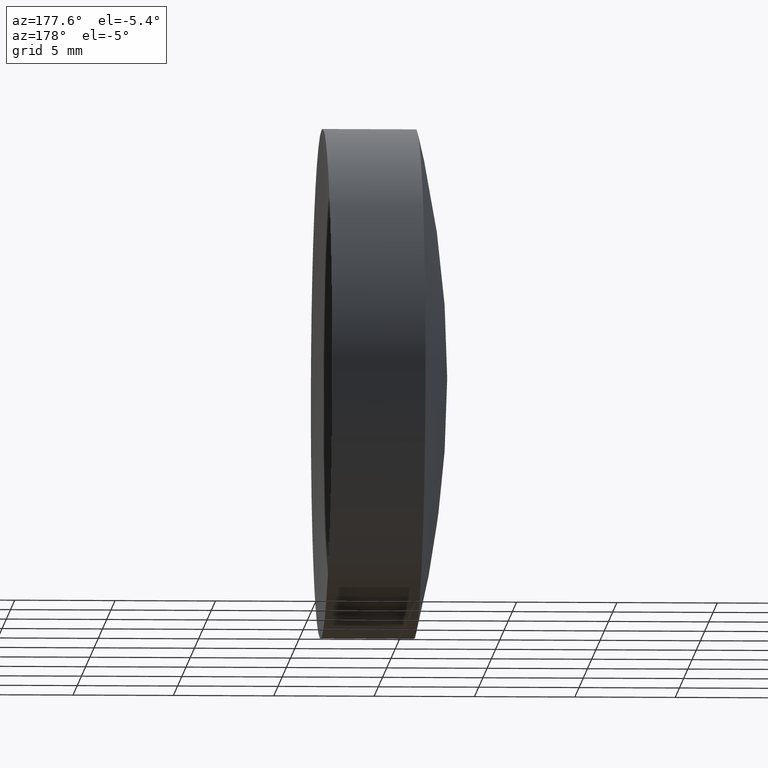
[diagram: clean part render]
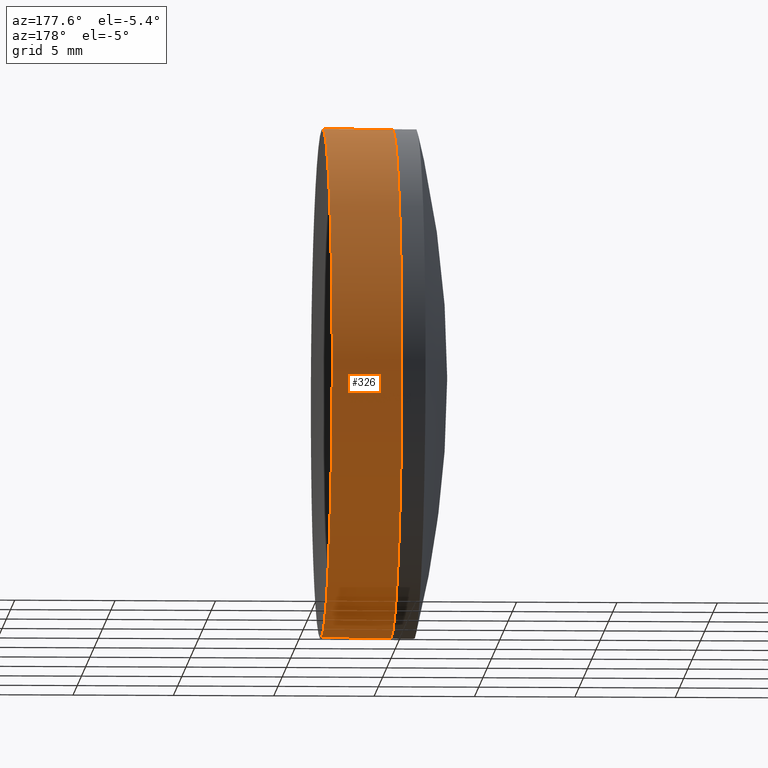
[diagram: same view with one face highlighted and labeled with its STEP entity id]
A machine part, auxiliary view. The second image highlights one B-rep face of the part: STEP entity #326.
In plain terms, the highlighted cylindrical surface (partial cylindrical patch) has radius 12.7 mm, axis along (-1, -0, -0).
Its self-contained STEP definition (entity closure, byte-faithful):
#6 = CARTESIAN_POINT ( 'NONE',  ( 335.1955762872631200, 0.0000000000000000000, 12.70000000000003100 ) ) ;
#16 = CARTESIAN_POINT ( 'NONE',  ( -0.5519199926577972300, 0.0000000000000000000, 12.70000000000001400 ) ) ;
#26 = CIRCLE ( 'NONE', #299, 12.69999999999999200 ) ;
#27 = FACE_OUTER_BOUND ( 'NONE', #133, .T. ) ;
#40 = CARTESIAN_POINT ( 'NONE',  ( -0.5519199926577972300, 1.555301434917140200E-015, -12.70000000000001400 ) ) ;
#41 = CARTESIAN_POINT ( 'NONE',  ( 338.6678479171338800, 0.0000000000000000000, 0.0000000000000000000 ) ) ;
#70 = ORIENTED_EDGE ( 'NONE', *, *, #186, .T. ) ;
#72 = DIRECTION ( 'NONE',  ( 0.0000000000000000000, 0.0000000000000000000, 1.000000000000000000 ) ) ;
#80 = VECTOR ( 'NONE', #205, 1000.000000000000000 ) ;
#81 = CYLINDRICAL_SURFACE ( 'NONE', #214, 12.70000000000001400 ) ;
#86 = VERTEX_POINT ( 'NONE', #6 ) ;
#97 = CARTESIAN_POINT ( 'NONE',  ( 335.1955762872631200, 0.0000000000000000000, 0.0000000000000000000 ) ) ;
#106 = LINE ( 'NONE', #16, #80 ) ;
#114 = VERTEX_POINT ( 'NONE', #166 ) ;
#118 = ORIENTED_EDGE ( 'NONE', *, *, #272, .F. ) ;
#119 = CIRCLE ( 'NONE', #202, 12.70000000000003300 ) ;
#126 = DIRECTION ( 'NONE',  ( 0.0000000000000000000, 0.0000000000000000000, 1.000000000000000000 ) ) ;
#133 = EDGE_LOOP ( 'NONE', ( #142, #70, #339, #118 ) ) ;
#142 = ORIENTED_EDGE ( 'NONE', *, *, #213, .T. ) ;
#154 = EDGE_CURVE ( 'NONE', #86, #337, #119, .T. ) ;
#166 = CARTESIAN_POINT ( 'NONE',  ( 338.6678479171338800, 1.555301434917139000E-015, -12.69999999999999200 ) ) ;
#175 = LINE ( 'NONE', #40, #325 ) ;
#186 = EDGE_CURVE ( 'NONE', #114, #337, #175, .T. ) ;
#188 = VERTEX_POINT ( 'NONE', #199 ) ;
#199 = CARTESIAN_POINT ( 'NONE',  ( 338.6678479171338800, 0.0000000000000000000, 12.69999999999999200 ) ) ;
#202 = AXIS2_PLACEMENT_3D ( 'NONE', #97, #282, #126 ) ;
#205 = DIRECTION ( 'NONE',  ( -1.000000000000000000, -0.0000000000000000000, -0.0000000000000000000 ) ) ;
#208 = CARTESIAN_POINT ( 'NONE',  ( 335.1955762872631200, 1.555301434917142400E-015, -12.70000000000002200 ) ) ;
#210 = DIRECTION ( 'NONE',  ( -1.000000000000000000, -0.0000000000000000000, -0.0000000000000000000 ) ) ;
#213 = EDGE_CURVE ( 'NONE', #188, #114, #26, .T. ) ;
#214 = AXIS2_PLACEMENT_3D ( 'NONE', #234, #210, #293 ) ;
#228 = DIRECTION ( 'NONE',  ( -1.000000000000000000, -0.0000000000000000000, -0.0000000000000000000 ) ) ;
#229 = DIRECTION ( 'NONE',  ( -1.000000000000000000, -0.0000000000000000000, -0.0000000000000000000 ) ) ;
#234 = CARTESIAN_POINT ( 'NONE',  ( -0.5519199926577972300, 0.0000000000000000000, 0.0000000000000000000 ) ) ;
#272 = EDGE_CURVE ( 'NONE', #188, #86, #106, .T. ) ;
#282 = DIRECTION ( 'NONE',  ( -1.000000000000000000, -0.0000000000000000000, -0.0000000000000000000 ) ) ;
#293 = DIRECTION ( 'NONE',  ( 0.0000000000000000000, 0.0000000000000000000, 1.000000000000000000 ) ) ;
#299 = AXIS2_PLACEMENT_3D ( 'NONE', #41, #229, #72 ) ;
#325 = VECTOR ( 'NONE', #228, 1000.000000000000000 ) ;
#326 = ADVANCED_FACE ( 'NONE', ( #27 ), #81, .T. ) ;
#337 = VERTEX_POINT ( 'NONE', #208 ) ;
#339 = ORIENTED_EDGE ( 'NONE', *, *, #154, .F. ) ;